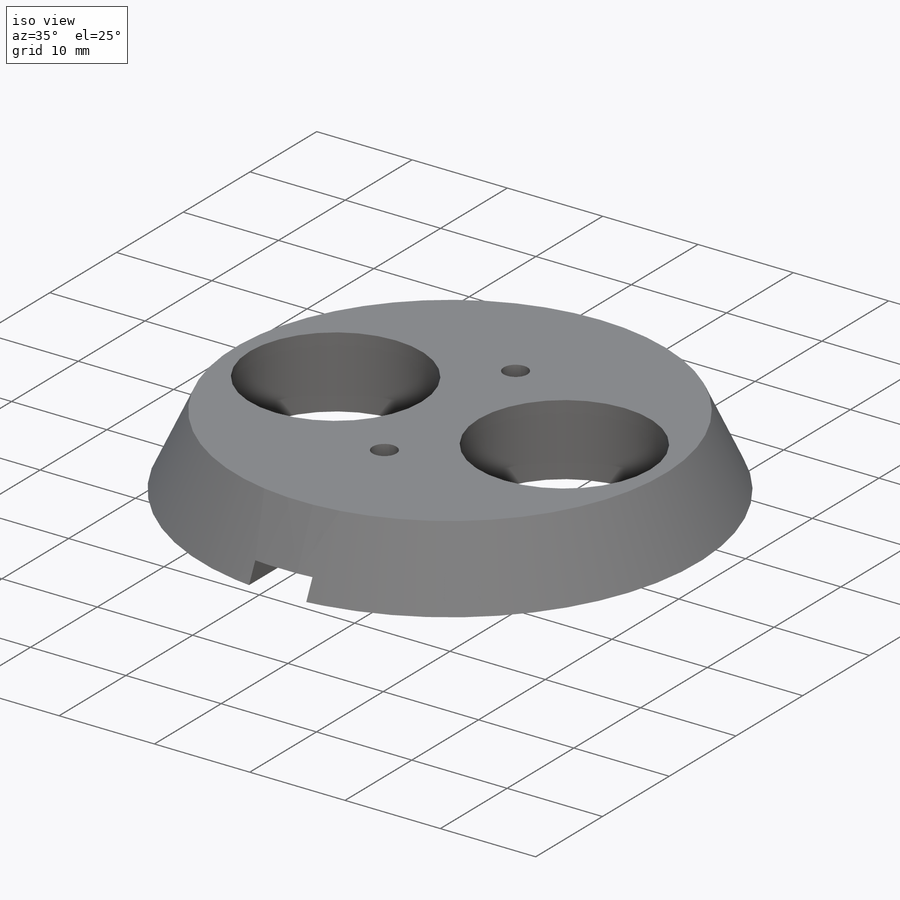
[diagram: iso view]
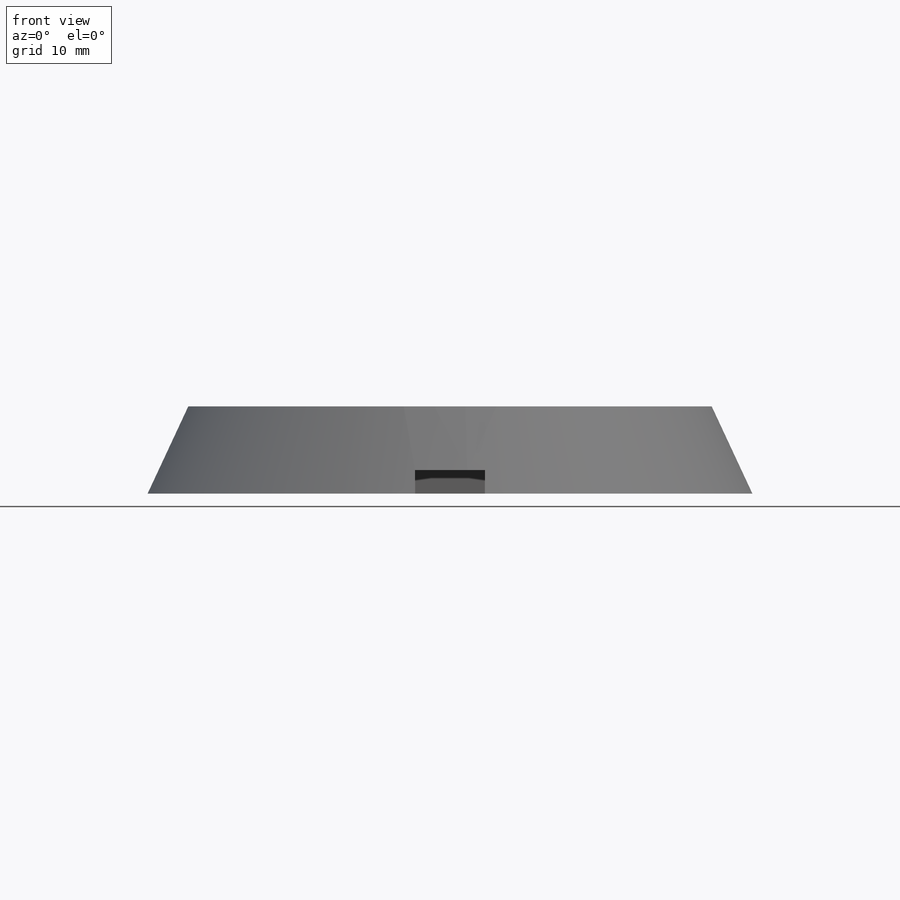
[diagram: front view]
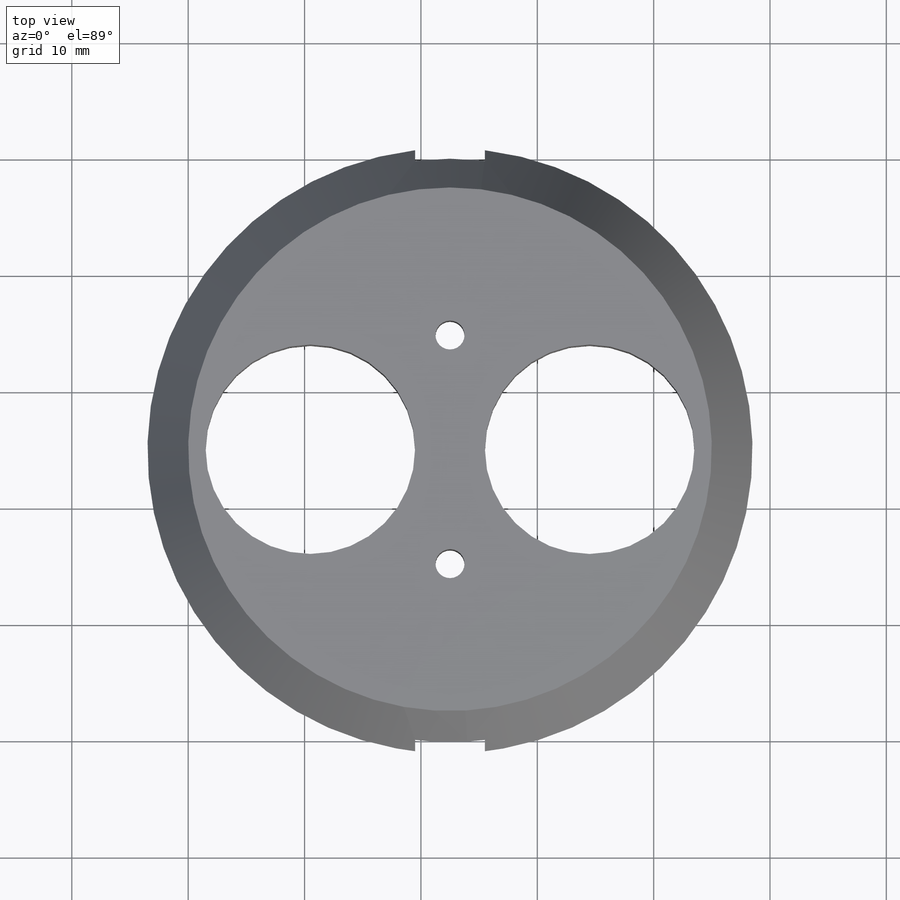
[diagram: top view]
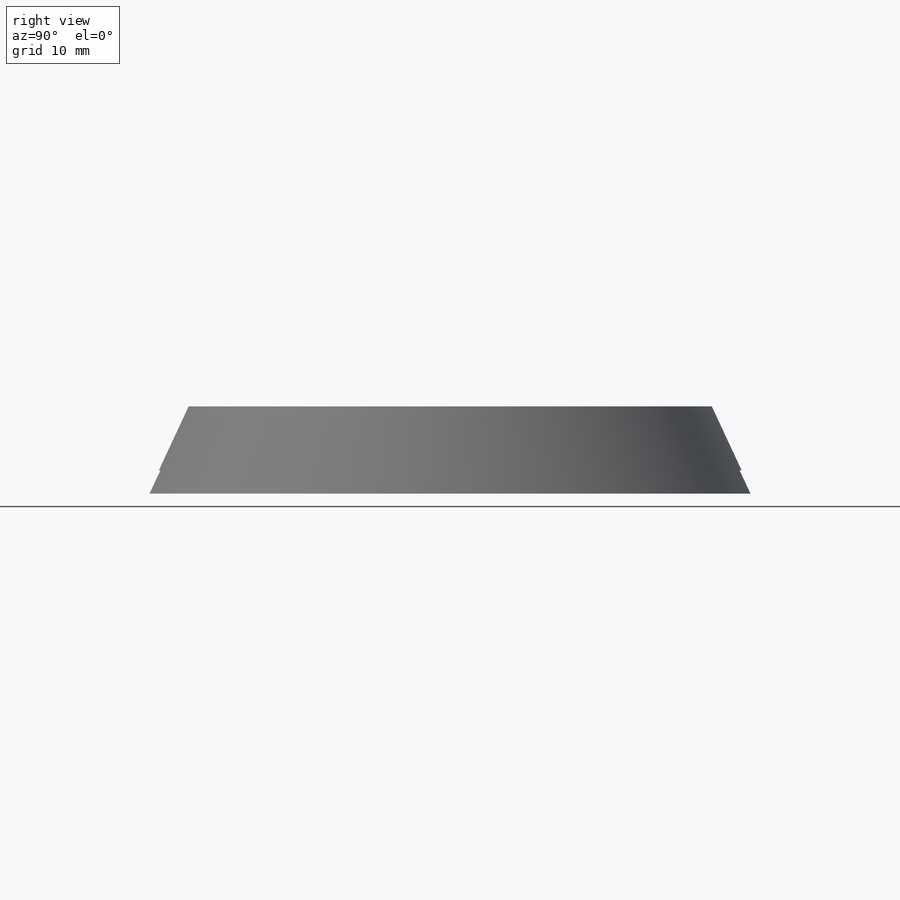
[diagram: right view]
SOLIDWORKS PART (.sldprt)
format: sldprt  version: not decoded by parser v0  size: 650,240 bytes
history: native  units: mm
features: sketch x25, cut_extrude x12, extrude x5, hole x3, fillet x2, material x1, plane x1 (+12 scaffold rows collapsed)
feature tree (61):
  scaffold x12  (default folders/planes/origin — collapsed)
  material  "Material <not specified>"
  sketch  "Sketch1"  dims[D1=207.0mm D2=106.0mm]
  extrude  "Boss-Extrude1"  Depth=35.5mm
  sketch  "Sketch2"  dims[D1=3.0mm D2=3.0mm D3=3.0mm]
  cut_extrude  "Cut-Extrude1"  Depth=32mm
  sketch  "Sketch3"  dims[D1=1.5mm D2=1.5mm D3=1.5mm D4=1.5mm]
  cut_extrude  "Cut-Extrude2"  Depth=3mm
  hole  "M18 Clearance Hole2"  Diameter=18mm Depth=3.5mm
  sketch  "3DSketch2"  dims[D1=55.0mm D2=55.0mm D3=36.0mm D4=24.0mm]
  sketch  "Sketch5"  dims[hole-wizard template sketch: 59 standard entries collapsed; hole parameters kept: c18.Thru Hole Dia.=18.0mm c18.Thru Hole Depth=3.5mm]
  fillet  "Fillet1"  Radius=2mm
  fillet  "Fillet2"  Radius=2mm
  sketch  "Sketch6"  dims[D1=10.0mm D2=10.0mm D3=139.0mm]
  extrude  "Boss-Extrude2"  Depth=29mm
  sketch  "Sketch7"  dims[D1=10.0mm D2=10.0mm D3=139.0mm]
  extrude  "Boss-Extrude3"  Depth=29mm
  sketch  "Sketch8"  dims[D1=10.0mm D2=10.0mm D3=25.0mm]
  extrude  "Boss-Extrude4"  Depth=29mm
  sketch  "Sketch9"  dims[D1=10.0mm D2=10.0mm D3=25.0mm]
  extrude  "Boss-Extrude5"  Depth=29mm
  hole  "M3 Clearance Hole1"  Diameter=3.4mm Depth=26mm
  sketch  "3DSketch4"  dims[c1.D1=5.0mm c1.D2=5.0mm c1.D3=5.0mm c1.D4=5.0mm c1.D5=5.0mm c1.D6=5.0mm c1.D7=29.0mm c1.D8=29.0mm c2.D7=5.0mm c2.D8=5.0mm]
  sketch  "Sketch11"  dims[hole-wizard template sketch: 47 standard entries collapsed; hole parameters kept: c15.Hole Depth=26.0mm c15.D3=~14.816244mm c15.Drill Angle=118.0deg]
  sketch  "Sketch12"  dims[D1=5.0mm D2=5.0mm]
  cut_extrude  "Cut-Extrude4"  Depth=6mm
  sketch  "Sketch13"  dims[D1=5.0mm D2=5.0mm]
  cut_extrude  "Cut-Extrude5"  Depth=6mm
  sketch  "Sketch14"  dims[D1=5.0mm D2=5.0mm]
  cut_extrude  "Cut-Extrude6"  Depth=6mm
  sketch  "Sketch15"  dims[D1=5.0mm D2=5.0mm]
  cut_extrude  "Cut-Extrude8"  Depth=6mm
  plane  "Plane3"  Offset=7.5mm
  sketch  "Sketch16"  dims[D1=48.0mm D2=55.0mm]
  sketch  "Sketch17"  dims[D1=55.0mm]
  sketch  "Sketch18"  dims[D1=60.0mm D2=55.0mm]
  cut_extrude  "Cut-Extrude9"  [1 undecoded]
  sketch  "Sketch19"  dims[D1=36.0mm D2=55.0mm]
  cut_extrude  "Cut-Extrude10"  [1 undecoded]
  sketch  "Sketch20"  dims[D1=48.0mm D2=6.0mm D3=11.0mm]
  cut_extrude  "Cut-Extrude13"  Depth=2mm
  sketch  "Sketch21"  dims[D1=48.0mm D2=11.0mm D3=6.0mm]
  cut_extrude  "Cut-Extrude14"  Depth=2mm
  sketch  "Sketch22"
  cut_extrude  "Cut-Extrude15"  [1 undecoded]
  sketch  "Sketch23"
  cut_extrude  "Cut-Extrude16"  Depth=9mm
  hole  "M3x0.5 Tapped Hole1"  Diameter=2.5mm Depth=7.5001mm
  sketch  "3DSketch6"  dims[D1=3.0mm D2=5.0mm D3=3.0mm D4=5.0mm D5=3.0mm]
  sketch  "Sketch25"  dims[hole-wizard template sketch: 60 standard entries collapsed; hole parameters kept: c18.Thru Tap Drill Depth=7.5001mm]
decode coverage: 42 of 47 modeling features carry decoded parameters
note: ~ marks probable driven/reference dimensions
note: 3 parameter values undecoded
summary: no parameter record found for 3 features
note: suppression state not decoded; provenance and decode notes live in map.json
